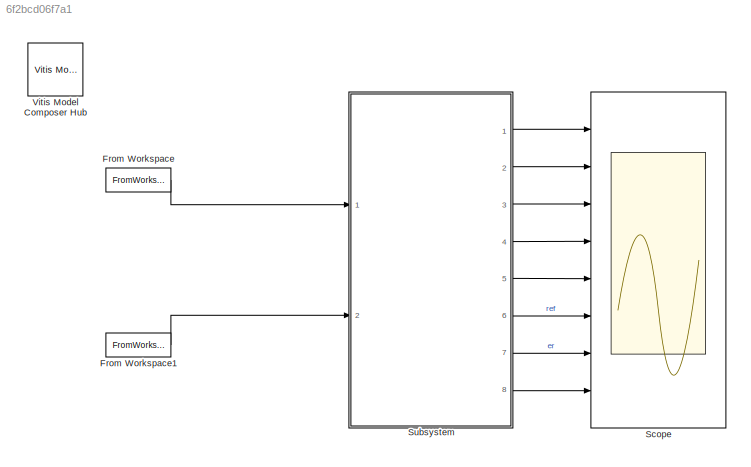
MODEL slx_6f2bcd06f7a1
KIND model
CONFIG AbsTol = auto
CONFIG EnableMultiTasking = off
CONFIG FixedStep = auto
CONFIG MaxStep = auto
CONFIG MinStep = auto
CONFIG RelTol = 1e-3
CONFIG SampleTimeConstraint = Unconstrained
CONFIG SolverName = FixedStepDiscrete
CONFIG StartTime = 0.0
CONFIG StopTime = 100e-6
BLOCK [FromWorkspace] From Workspace
  VariableName = input
  ZeroCross = off
BLOCK [FromWorkspace] From Workspace1
  VariableName = ref
  ZeroCross = off
BLOCK [Scope] Scope
  Floating = off
  NumInputPorts = 8
  Ports = [8]
  ScopeSpecificationString = Simulink.scopes.TimeScopeBlockCfg('CurrentConfiguration', extmgr.ConfigurationSet(extmgr.Configuration('Core','General UI',true),extmgr.Configuration('Core','Source UI',true),extmgr.Configuration('Sources','WiredSimulink',true),extmgr.Configuration('Visuals','Time Domain',true,'SerializedDisplays',{struct('MinYLimReal','-0.21152','MaxYLimReal','1.90366','YLabelReal','','MinYLimMag','0.00000','MaxY...<+6268ch>
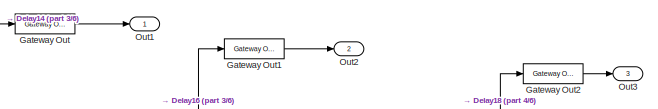
[diagram: Subsystem - part 1/6, top left region]
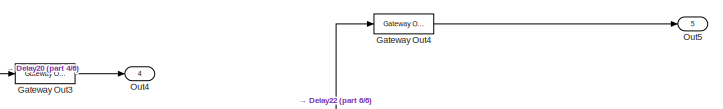
[diagram: Subsystem - part 2/6, top center region]
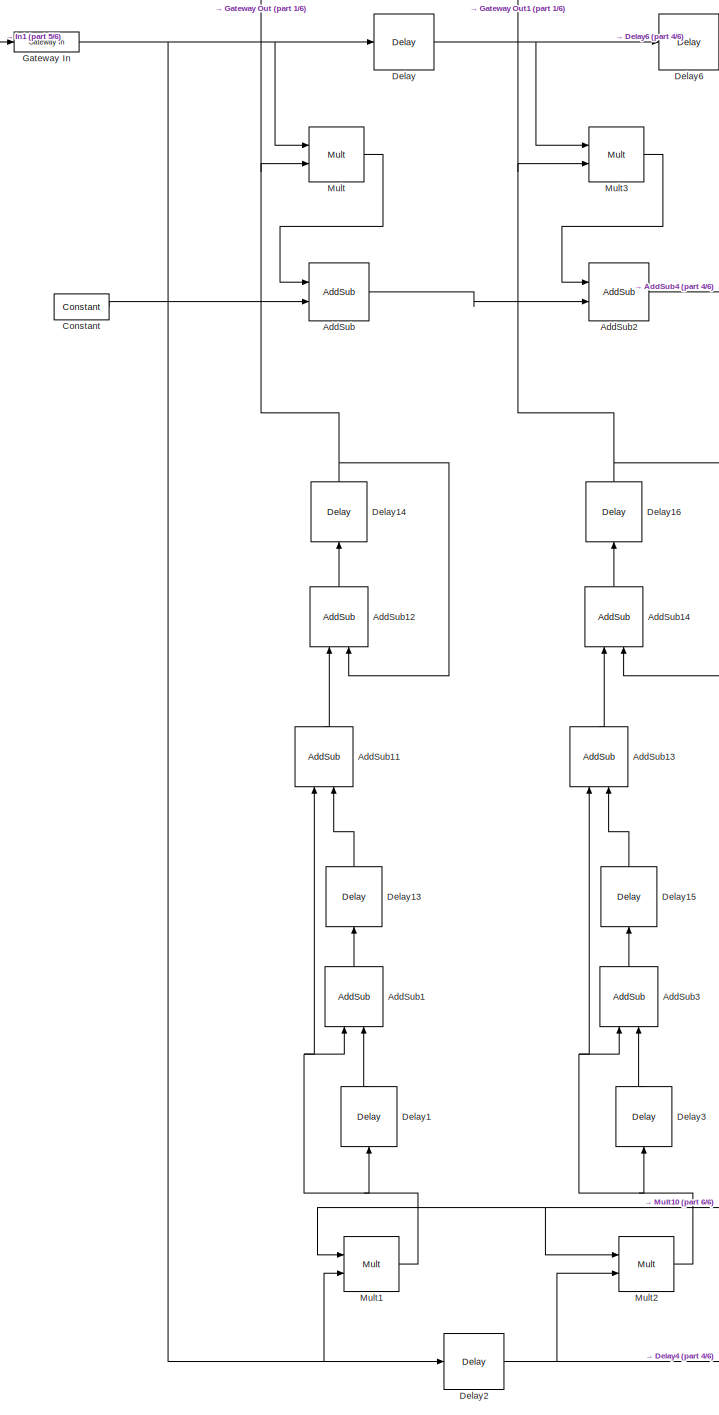
[diagram: Subsystem - part 3/6, left side, full height]
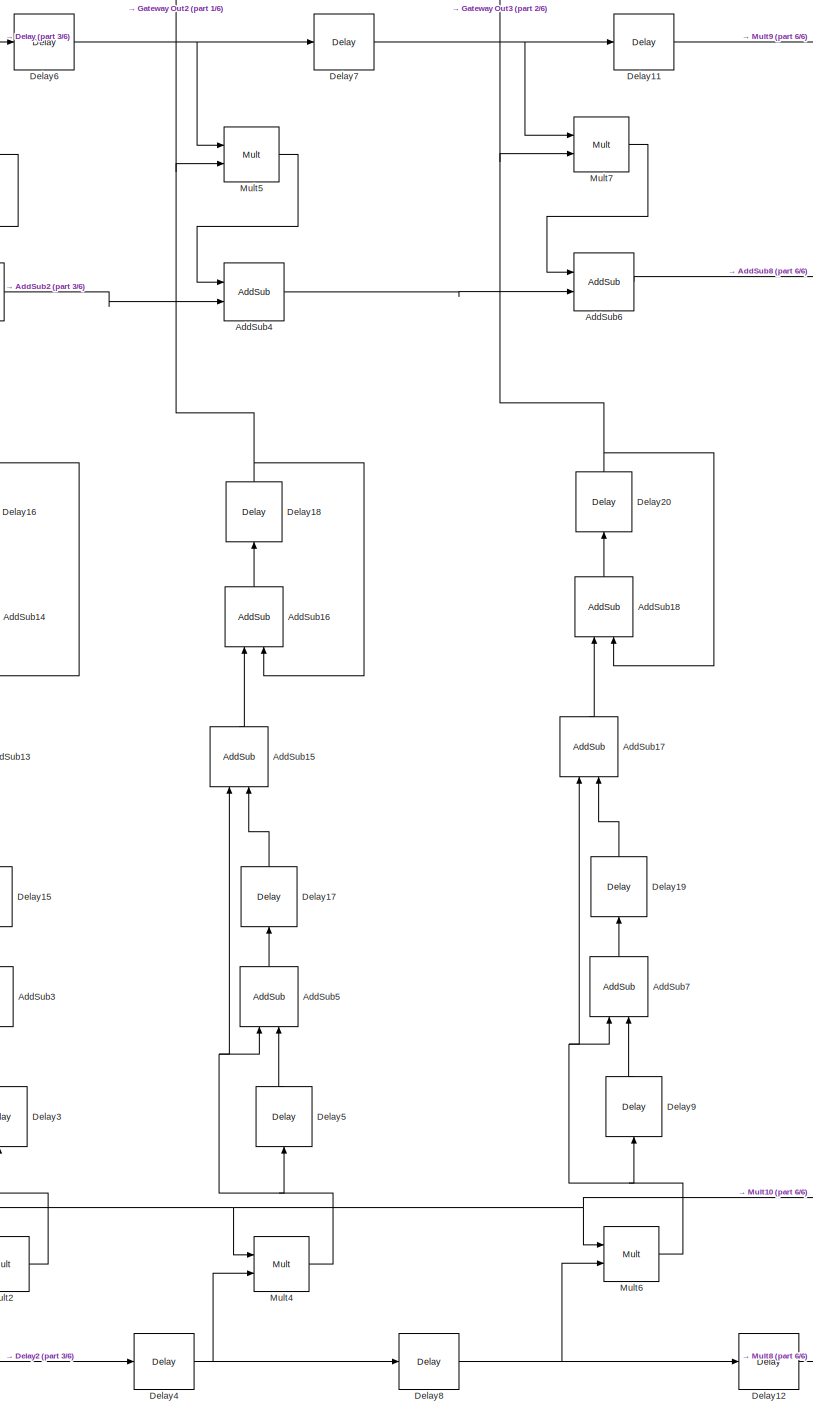
[diagram: Subsystem - part 4/6, center side, full height]
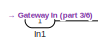
[diagram: Subsystem - part 5/6, top left region]
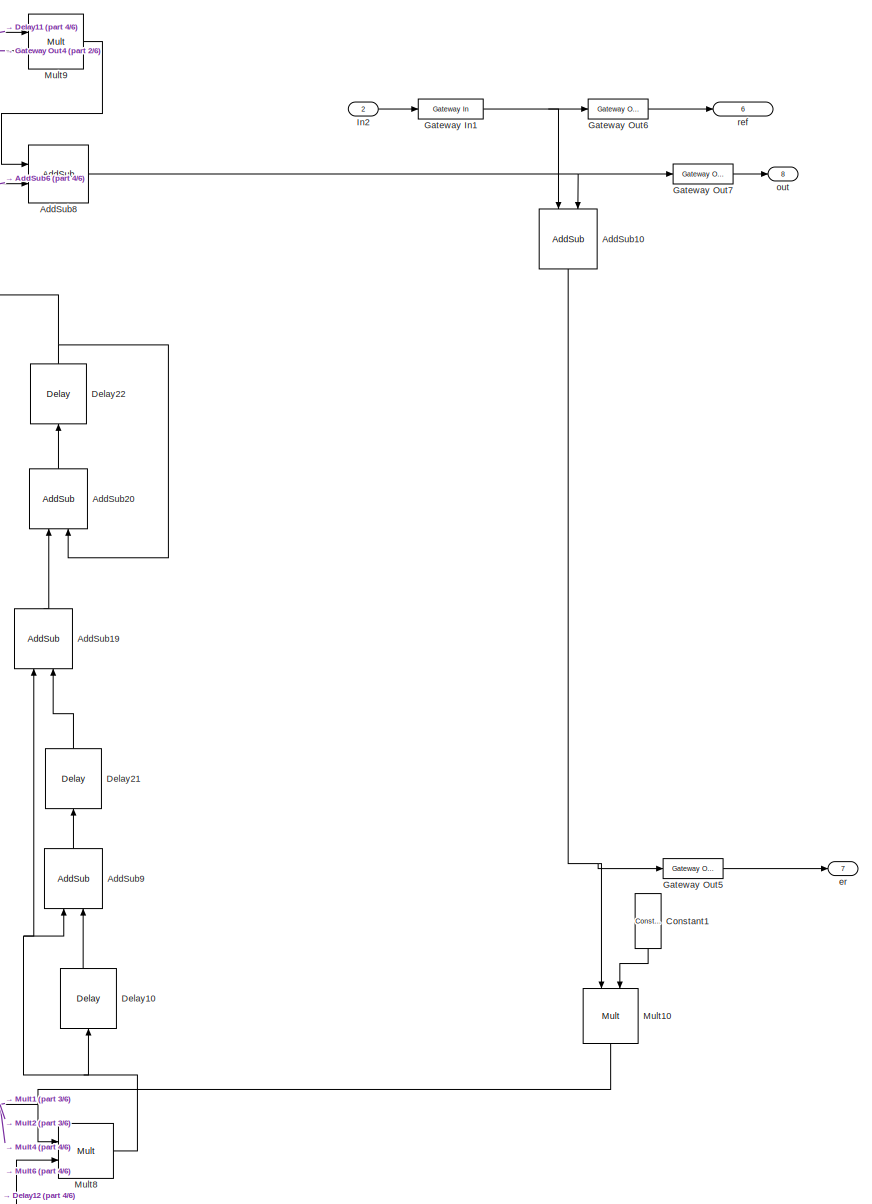
[diagram: Subsystem - part 6/6, middle right region]
BLOCK [SubSystem] Subsystem
  Ports = [2, 8]
  RequestExecContextInheritance = off
BLOCK [Reference] Subsystem/AddSub  REF=hdlBasic/AddSub
  Ports = [2, 1]
  SourceBlock = hdlBasic/AddSub
  SourceType = Adder/Subtracter Block
BLOCK [Reference] Subsystem/AddSub1  REF=hdlBasic/AddSub
  NameLocation = right
  Ports = [2, 1]
  SourceBlock = hdlBasic/AddSub
  SourceType = Adder/Subtracter Block
BLOCK [Reference] Subsystem/AddSub10  REF=hdlBasic/AddSub
  NameLocation = left
  Ports = [2, 1]
  SourceBlock = hdlBasic/AddSub
  SourceType = Adder/Subtracter Block
BLOCK [Reference] Subsystem/AddSub11  REF=hdlBasic/AddSub
  NameLocation = right
  Ports = [2, 1]
  SourceBlock = hdlBasic/AddSub
  SourceType = Adder/Subtracter Block
BLOCK [Reference] Subsystem/AddSub12  REF=hdlBasic/AddSub
  NameLocation = right
  Ports = [2, 1]
  SourceBlock = hdlBasic/AddSub
  SourceType = Adder/Subtracter Block
BLOCK [Reference] Subsystem/AddSub13  REF=hdlBasic/AddSub
  NameLocation = right
  Ports = [2, 1]
  SourceBlock = hdlBasic/AddSub
  SourceType = Adder/Subtracter Block
BLOCK [Reference] Subsystem/AddSub14  REF=hdlBasic/AddSub
  NameLocation = right
  Ports = [2, 1]
  SourceBlock = hdlBasic/AddSub
  SourceType = Adder/Subtracter Block
BLOCK [Reference] Subsystem/AddSub15  REF=hdlBasic/AddSub
  NameLocation = right
  Ports = [2, 1]
  SourceBlock = hdlBasic/AddSub
  SourceType = Adder/Subtracter Block
BLOCK [Reference] Subsystem/AddSub16  REF=hdlBasic/AddSub
  NameLocation = right
  Ports = [2, 1]
  SourceBlock = hdlBasic/AddSub
  SourceType = Adder/Subtracter Block
BLOCK [Reference] Subsystem/AddSub17  REF=hdlBasic/AddSub
  NameLocation = right
  Ports = [2, 1]
  SourceBlock = hdlBasic/AddSub
  SourceType = Adder/Subtracter Block
BLOCK [Reference] Subsystem/AddSub18  REF=hdlBasic/AddSub
  NameLocation = right
  Ports = [2, 1]
  SourceBlock = hdlBasic/AddSub
  SourceType = Adder/Subtracter Block
BLOCK [Reference] Subsystem/AddSub19  REF=hdlBasic/AddSub
  NameLocation = right
  Ports = [2, 1]
  SourceBlock = hdlBasic/AddSub
  SourceType = Adder/Subtracter Block
BLOCK [Reference] Subsystem/AddSub2  REF=hdlBasic/AddSub
  Ports = [2, 1]
  SourceBlock = hdlBasic/AddSub
  SourceType = Adder/Subtracter Block
BLOCK [Reference] Subsystem/AddSub20  REF=hdlBasic/AddSub
  NameLocation = right
  Ports = [2, 1]
  SourceBlock = hdlBasic/AddSub
  SourceType = Adder/Subtracter Block
BLOCK [Reference] Subsystem/AddSub3  REF=hdlBasic/AddSub
  NameLocation = right
  Ports = [2, 1]
  SourceBlock = hdlBasic/AddSub
  SourceType = Adder/Subtracter Block
BLOCK [Reference] Subsystem/AddSub4  REF=hdlBasic/AddSub
  Ports = [2, 1]
  SourceBlock = hdlBasic/AddSub
  SourceType = Adder/Subtracter Block
BLOCK [Reference] Subsystem/AddSub5  REF=hdlBasic/AddSub
  NameLocation = right
  Ports = [2, 1]
  SourceBlock = hdlBasic/AddSub
  SourceType = Adder/Subtracter Block
BLOCK [Reference] Subsystem/AddSub6  REF=hdlBasic/AddSub
  Ports = [2, 1]
  SourceBlock = hdlBasic/AddSub
  SourceType = Adder/Subtracter Block
BLOCK [Reference] Subsystem/AddSub7  REF=hdlBasic/AddSub
  NameLocation = right
  Ports = [2, 1]
  SourceBlock = hdlBasic/AddSub
  SourceType = Adder/Subtracter Block
BLOCK [Reference] Subsystem/AddSub8  REF=hdlBasic/AddSub
  Ports = [2, 1]
  SourceBlock = hdlBasic/AddSub
  SourceType = Adder/Subtracter Block
BLOCK [Reference] Subsystem/AddSub9  REF=hdlBasic/AddSub
  NameLocation = right
  Ports = [2, 1]
  SourceBlock = hdlBasic/AddSub
  SourceType = Adder/Subtracter Block
BLOCK [Reference] Subsystem/Constant  REF=hdlBasic/Constant
  Ports = [0, 1]
  SourceBlock = hdlBasic/Constant
  SourceType = Constant Block Block
BLOCK [Reference] Subsystem/Constant1  REF=hdlBasic/Constant
  NameLocation = left
  Ports = [0, 1]
  SourceBlock = hdlBasic/Constant
  SourceType = Constant Block Block
BLOCK [Reference] Subsystem/Delay  REF=hdlBasic/Delay
  Ports = [1, 1]
  SourceBlock = hdlBasic/Delay
  SourceType = Delay Block
BLOCK [Reference] Subsystem/Delay1  REF=hdlBasic/Delay
  NameLocation = right
  Ports = [1, 1]
  SourceBlock = hdlBasic/Delay
  SourceType = Delay Block
BLOCK [Reference] Subsystem/Delay10  REF=hdlBasic/Delay
  NameLocation = right
  Ports = [1, 1]
  SourceBlock = hdlBasic/Delay
  SourceType = Delay Block
BLOCK [Reference] Subsystem/Delay11  REF=hdlBasic/Delay
  Ports = [1, 1]
  SourceBlock = hdlBasic/Delay
  SourceType = Delay Block
BLOCK [Reference] Subsystem/Delay12  REF=hdlBasic/Delay
  Ports = [1, 1]
  SourceBlock = hdlBasic/Delay
  SourceType = Delay Block
BLOCK [Reference] Subsystem/Delay13  REF=hdlBasic/Delay
  NameLocation = right
  Ports = [1, 1]
  SourceBlock = hdlBasic/Delay
  SourceType = Delay Block
BLOCK [Reference] Subsystem/Delay14  REF=hdlBasic/Delay
  NameLocation = right
  Ports = [1, 1]
  SourceBlock = hdlBasic/Delay
  SourceType = Delay Block
BLOCK [Reference] Subsystem/Delay15  REF=hdlBasic/Delay
  NameLocation = right
  Ports = [1, 1]
  SourceBlock = hdlBasic/Delay
  SourceType = Delay Block
BLOCK [Reference] Subsystem/Delay16  REF=hdlBasic/Delay
  NameLocation = right
  Ports = [1, 1]
  SourceBlock = hdlBasic/Delay
  SourceType = Delay Block
BLOCK [Reference] Subsystem/Delay17  REF=hdlBasic/Delay
  NameLocation = right
  Ports = [1, 1]
  SourceBlock = hdlBasic/Delay
  SourceType = Delay Block
BLOCK [Reference] Subsystem/Delay18  REF=hdlBasic/Delay
  NameLocation = right
  Ports = [1, 1]
  SourceBlock = hdlBasic/Delay
  SourceType = Delay Block
BLOCK [Reference] Subsystem/Delay19  REF=hdlBasic/Delay
  NameLocation = right
  Ports = [1, 1]
  SourceBlock = hdlBasic/Delay
  SourceType = Delay Block
BLOCK [Reference] Subsystem/Delay2  REF=hdlBasic/Delay
  Ports = [1, 1]
  SourceBlock = hdlBasic/Delay
  SourceType = Delay Block
BLOCK [Reference] Subsystem/Delay20  REF=hdlBasic/Delay
  NameLocation = right
  Ports = [1, 1]
  SourceBlock = hdlBasic/Delay
  SourceType = Delay Block
BLOCK [Reference] Subsystem/Delay21  REF=hdlBasic/Delay
  NameLocation = right
  Ports = [1, 1]
  SourceBlock = hdlBasic/Delay
  SourceType = Delay Block
BLOCK [Reference] Subsystem/Delay22  REF=hdlBasic/Delay
  NameLocation = right
  Ports = [1, 1]
  SourceBlock = hdlBasic/Delay
  SourceType = Delay Block
BLOCK [Reference] Subsystem/Delay3  REF=hdlBasic/Delay
  NameLocation = right
  Ports = [1, 1]
  SourceBlock = hdlBasic/Delay
  SourceType = Delay Block
BLOCK [Reference] Subsystem/Delay4  REF=hdlBasic/Delay
  Ports = [1, 1]
  SourceBlock = hdlBasic/Delay
  SourceType = Delay Block
BLOCK [Reference] Subsystem/Delay5  REF=hdlBasic/Delay
  NameLocation = right
  Ports = [1, 1]
  SourceBlock = hdlBasic/Delay
  SourceType = Delay Block
BLOCK [Reference] Subsystem/Delay6  REF=hdlBasic/Delay
  Ports = [1, 1]
  SourceBlock = hdlBasic/Delay
  SourceType = Delay Block
BLOCK [Reference] Subsystem/Delay7  REF=hdlBasic/Delay
  Ports = [1, 1]
  SourceBlock = hdlBasic/Delay
  SourceType = Delay Block
BLOCK [Reference] Subsystem/Delay8  REF=hdlBasic/Delay
  Ports = [1, 1]
  SourceBlock = hdlBasic/Delay
  SourceType = Delay Block
BLOCK [Reference] Subsystem/Delay9  REF=hdlBasic/Delay
  NameLocation = right
  Ports = [1, 1]
  SourceBlock = hdlBasic/Delay
  SourceType = Delay Block
BLOCK [Reference] Subsystem/Gateway In  REF=hdlBasic/Gateway In
  Ports = [1, 1]
  SourceBlock = hdlBasic/Gateway In
  SourceType = Gateway In Block
BLOCK [Reference] Subsystem/Gateway In1  REF=hdlBasic/Gateway In
  Ports = [1, 1]
  SourceBlock = hdlBasic/Gateway In
  SourceType = Gateway In Block
BLOCK [Reference] Subsystem/Gateway Out  REF=hdlBasic/Gateway Out
  Ports = [1, 1]
  SourceBlock = hdlBasic/Gateway Out
  SourceType = Gateway Out Block
BLOCK [Reference] Subsystem/Gateway Out1  REF=hdlBasic/Gateway Out
  Ports = [1, 1]
  SourceBlock = hdlBasic/Gateway Out
  SourceType = Gateway Out Block
BLOCK [Reference] Subsystem/Gateway Out2  REF=hdlBasic/Gateway Out
  Ports = [1, 1]
  SourceBlock = hdlBasic/Gateway Out
  SourceType = Gateway Out Block
BLOCK [Reference] Subsystem/Gateway Out3  REF=hdlBasic/Gateway Out
  Ports = [1, 1]
  SourceBlock = hdlBasic/Gateway Out
  SourceType = Gateway Out Block
BLOCK [Reference] Subsystem/Gateway Out4  REF=hdlBasic/Gateway Out
  Ports = [1, 1]
  SourceBlock = hdlBasic/Gateway Out
  SourceType = Gateway Out Block
BLOCK [Reference] Subsystem/Gateway Out5  REF=hdlBasic/Gateway Out
  Ports = [1, 1]
  SourceBlock = hdlBasic/Gateway Out
  SourceType = Gateway Out Block
BLOCK [Reference] Subsystem/Gateway Out6  REF=hdlBasic/Gateway Out
  Ports = [1, 1]
  SourceBlock = hdlBasic/Gateway Out
  SourceType = Gateway Out Block
BLOCK [Reference] Subsystem/Gateway Out7  REF=hdlBasic/Gateway Out
  Ports = [1, 1]
  SourceBlock = hdlBasic/Gateway Out
  SourceType = Gateway Out Block
BLOCK [Inport] Subsystem/In1
BLOCK [Inport] Subsystem/In2
  Port = 2
BLOCK [Reference] Subsystem/Mult  REF=hdlBasic/Mult
  Ports = [2, 1]
  SourceBlock = hdlBasic/Mult
  SourceType = Multiplier Block
BLOCK [Reference] Subsystem/Mult1  REF=hdlBasic/Mult
  Ports = [2, 1]
  SourceBlock = hdlBasic/Mult
  SourceType = Multiplier Block
BLOCK [Reference] Subsystem/Mult10  REF=hdlBasic/Mult
  NameLocation = left
  Ports = [2, 1]
  SourceBlock = hdlBasic/Mult
  SourceType = Multiplier Block
BLOCK [Reference] Subsystem/Mult2  REF=hdlBasic/Mult
  Ports = [2, 1]
  SourceBlock = hdlBasic/Mult
  SourceType = Multiplier Block
BLOCK [Reference] Subsystem/Mult3  REF=hdlBasic/Mult
  Ports = [2, 1]
  SourceBlock = hdlBasic/Mult
  SourceType = Multiplier Block
BLOCK [Reference] Subsystem/Mult4  REF=hdlBasic/Mult
  Ports = [2, 1]
  SourceBlock = hdlBasic/Mult
  SourceType = Multiplier Block
BLOCK [Reference] Subsystem/Mult5  REF=hdlBasic/Mult
  Ports = [2, 1]
  SourceBlock = hdlBasic/Mult
  SourceType = Multiplier Block
BLOCK [Reference] Subsystem/Mult6  REF=hdlBasic/Mult
  Ports = [2, 1]
  SourceBlock = hdlBasic/Mult
  SourceType = Multiplier Block
BLOCK [Reference] Subsystem/Mult7  REF=hdlBasic/Mult
  Ports = [2, 1]
  SourceBlock = hdlBasic/Mult
  SourceType = Multiplier Block
BLOCK [Reference] Subsystem/Mult8  REF=hdlBasic/Mult
  Ports = [2, 1]
  SourceBlock = hdlBasic/Mult
  SourceType = Multiplier Block
BLOCK [Reference] Subsystem/Mult9  REF=hdlBasic/Mult
  Ports = [2, 1]
  SourceBlock = hdlBasic/Mult
  SourceType = Multiplier Block
BLOCK [Outport] Subsystem/Out1
BLOCK [Outport] Subsystem/Out2
  Port = 2
BLOCK [Outport] Subsystem/Out3
  Port = 3
BLOCK [Outport] Subsystem/Out4
  Port = 4
BLOCK [Outport] Subsystem/Out5
  Port = 5
BLOCK [Outport] Subsystem/er
  Port = 7
BLOCK [Outport] Subsystem/out
  Port = 8
BLOCK [Outport] Subsystem/ref
  Port = 6
BLOCK [Reference] Vitis Model Composer Hub  REF=vmcUtilities/Vitis Model Composer Hub
  Ports = []
  SourceBlock = vmcUtilities/Vitis Model Composer Hub
  SourceType = Implementation
  Tag = genX
  UserDataPersistent = on
LINE From Workspace1:1 -> Subsystem:2
LINE From Workspace:1 -> Subsystem:1
NET Subsystem/AddSub10:1 -> Subsystem/Gateway Out5:1, Subsystem/Mult10:1
LINE Subsystem/AddSub11:1 -> Subsystem/AddSub12:1
LINE Subsystem/AddSub12:1 -> Subsystem/Delay14:1
LINE Subsystem/AddSub13:1 -> Subsystem/AddSub14:1
LINE Subsystem/AddSub14:1 -> Subsystem/Delay16:1
LINE Subsystem/AddSub15:1 -> Subsystem/AddSub16:1
LINE Subsystem/AddSub16:1 -> Subsystem/Delay18:1
LINE Subsystem/AddSub17:1 -> Subsystem/AddSub18:1
LINE Subsystem/AddSub18:1 -> Subsystem/Delay20:1
LINE Subsystem/AddSub19:1 -> Subsystem/AddSub20:1
LINE Subsystem/AddSub1:1 -> Subsystem/Delay13:1
LINE Subsystem/AddSub20:1 -> Subsystem/Delay22:1
LINE Subsystem/AddSub2:1 -> Subsystem/AddSub4:2
LINE Subsystem/AddSub3:1 -> Subsystem/Delay15:1
LINE Subsystem/AddSub4:1 -> Subsystem/AddSub6:2
LINE Subsystem/AddSub5:1 -> Subsystem/Delay17:1
LINE Subsystem/AddSub6:1 -> Subsystem/AddSub8:2
LINE Subsystem/AddSub7:1 -> Subsystem/Delay19:1
NET Subsystem/AddSub8:1 -> Subsystem/AddSub10:2, Subsystem/Gateway Out7:1
LINE Subsystem/AddSub9:1 -> Subsystem/Delay21:1
LINE Subsystem/AddSub:1 -> Subsystem/AddSub2:2
LINE Subsystem/Constant1:1 -> Subsystem/Mult10:2
LINE Subsystem/Constant:1 -> Subsystem/AddSub:2
LINE Subsystem/Delay10:1 -> Subsystem/AddSub9:2
LINE Subsystem/Delay11:1 -> Subsystem/Mult9:1
LINE Subsystem/Delay12:1 -> Subsystem/Mult8:2
LINE Subsystem/Delay13:1 -> Subsystem/AddSub11:2
NET Subsystem/Delay14:1 -> Subsystem/AddSub12:2, Subsystem/Gateway Out:1, Subsystem/Mult:2
LINE Subsystem/Delay15:1 -> Subsystem/AddSub13:2
NET Subsystem/Delay16:1 -> Subsystem/AddSub14:2, Subsystem/Gateway Out1:1, Subsystem/Mult3:2
LINE Subsystem/Delay17:1 -> Subsystem/AddSub15:2
NET Subsystem/Delay18:1 -> Subsystem/AddSub16:2, Subsystem/Gateway Out2:1, Subsystem/Mult5:2
LINE Subsystem/Delay19:1 -> Subsystem/AddSub17:2
LINE Subsystem/Delay1:1 -> Subsystem/AddSub1:2
NET Subsystem/Delay20:1 -> Subsystem/AddSub18:2, Subsystem/Gateway Out3:1, Subsystem/Mult7:2
LINE Subsystem/Delay21:1 -> Subsystem/AddSub19:2
NET Subsystem/Delay22:1 -> Subsystem/AddSub20:2, Subsystem/Gateway Out4:1, Subsystem/Mult9:2
NET Subsystem/Delay2:1 -> Subsystem/Delay4:1, Subsystem/Mult2:2
LINE Subsystem/Delay3:1 -> Subsystem/AddSub3:2
NET Subsystem/Delay4:1 -> Subsystem/Delay8:1, Subsystem/Mult4:2
LINE Subsystem/Delay5:1 -> Subsystem/AddSub5:2
NET Subsystem/Delay6:1 -> Subsystem/Delay7:1, Subsystem/Mult5:1
NET Subsystem/Delay7:1 -> Subsystem/Delay11:1, Subsystem/Mult7:1
NET Subsystem/Delay8:1 -> Subsystem/Delay12:1, Subsystem/Mult6:2
LINE Subsystem/Delay9:1 -> Subsystem/AddSub7:2
NET Subsystem/Delay:1 -> Subsystem/Delay6:1, Subsystem/Mult3:1
NET Subsystem/Gateway In1:1 -> Subsystem/AddSub10:1, Subsystem/Gateway Out6:1
NET Subsystem/Gateway In:1 -> Subsystem/Delay2:1, Subsystem/Delay:1, Subsystem/Mult1:2, Subsystem/Mult:1
LINE Subsystem/Gateway Out1:1 -> Subsystem/Out2:1
LINE Subsystem/Gateway Out2:1 -> Subsystem/Out3:1
LINE Subsystem/Gateway Out3:1 -> Subsystem/Out4:1
LINE Subsystem/Gateway Out4:1 -> Subsystem/Out5:1
LINE Subsystem/Gateway Out5:1 -> Subsystem/er:1
LINE Subsystem/Gateway Out6:1 -> Subsystem/ref:1
LINE Subsystem/Gateway Out7:1 -> Subsystem/out:1
LINE Subsystem/Gateway Out:1 -> Subsystem/Out1:1
LINE Subsystem/In1:1 -> Subsystem/Gateway In:1
LINE Subsystem/In2:1 -> Subsystem/Gateway In1:1
NET Subsystem/Mult10:1 -> Subsystem/Mult1:1, Subsystem/Mult2:1, Subsystem/Mult4:1, Subsystem/Mult6:1, Subsystem/Mult8:1
NET Subsystem/Mult1:1 -> Subsystem/AddSub11:1, Subsystem/AddSub1:1, Subsystem/Delay1:1
NET Subsystem/Mult2:1 -> Subsystem/AddSub13:1, Subsystem/AddSub3:1, Subsystem/Delay3:1
LINE Subsystem/Mult3:1 -> Subsystem/AddSub2:1
NET Subsystem/Mult4:1 -> Subsystem/AddSub15:1, Subsystem/AddSub5:1, Subsystem/Delay5:1
LINE Subsystem/Mult5:1 -> Subsystem/AddSub4:1
NET Subsystem/Mult6:1 -> Subsystem/AddSub17:1, Subsystem/AddSub7:1, Subsystem/Delay9:1
LINE Subsystem/Mult7:1 -> Subsystem/AddSub6:1
NET Subsystem/Mult8:1 -> Subsystem/AddSub19:1, Subsystem/AddSub9:1, Subsystem/Delay10:1
LINE Subsystem/Mult9:1 -> Subsystem/AddSub8:1
LINE Subsystem/Mult:1 -> Subsystem/AddSub:1
LINE Subsystem:1 -> Scope:1
LINE Subsystem:2 -> Scope:2
LINE Subsystem:3 -> Scope:3
LINE Subsystem:4 -> Scope:4
LINE Subsystem:5 -> Scope:5
LINE Subsystem:6 -> Scope:6
LINE Subsystem:7 -> Scope:7
LINE Subsystem:8 -> Scope:8
note: NET lines group one-source signal fan-out (src -> all destinations, sorted); 1:1 wires keep LINE
